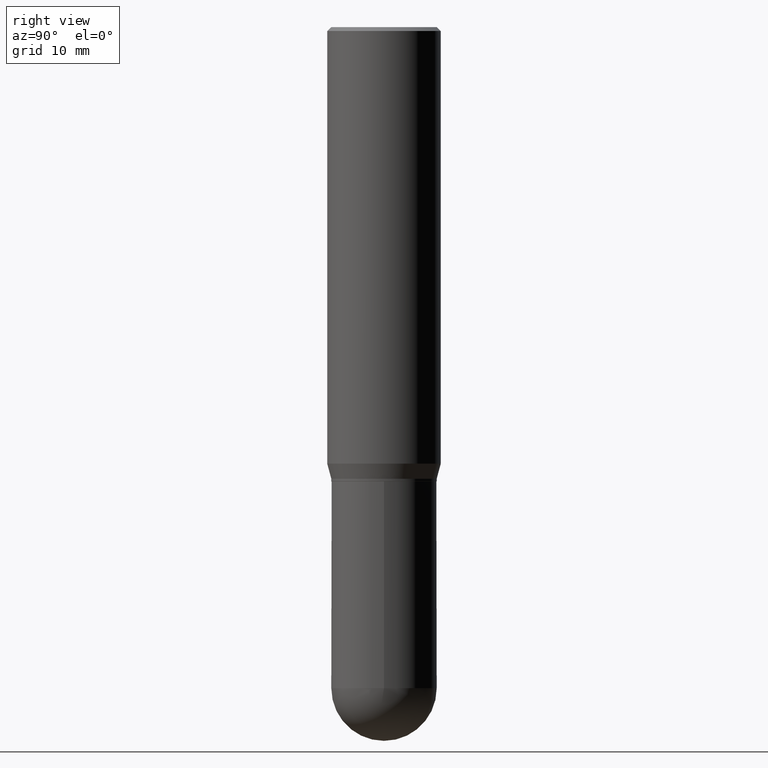
[diagram: clean part render]
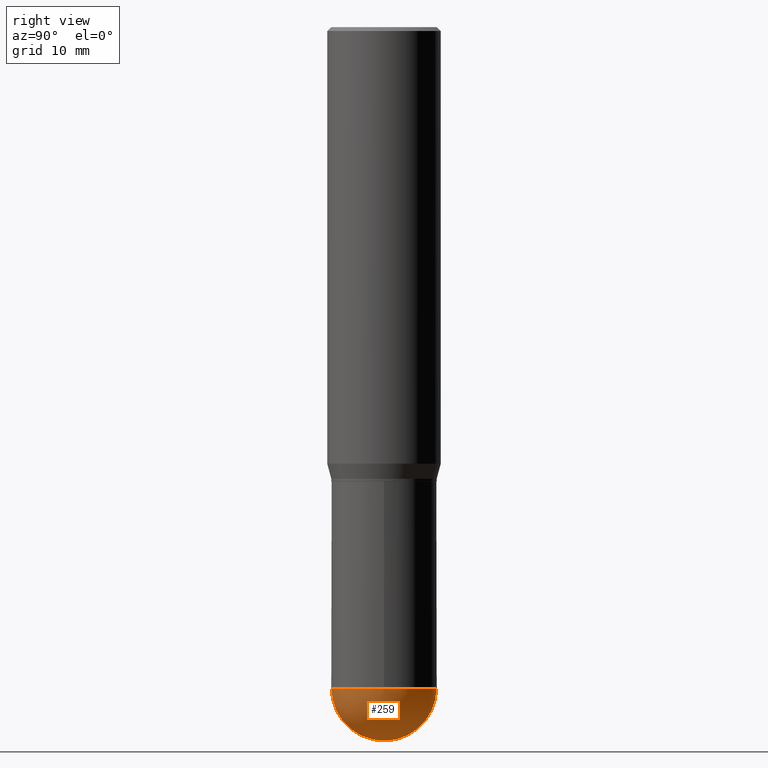
[diagram: same view with one face highlighted and labeled with its STEP entity id]
A machine part, right view. The second image highlights one B-rep face of the part: STEP entity #259.
In plain terms, the highlighted spherical surface has radius 5.1587 mm.
Its self-contained STEP definition (entity closure, byte-faithful):
#10 = CARTESIAN_POINT ( 'NONE',  ( 6.210996075139691695E-29, -8.917326398390289827E-15, -2.546899999999999942 ) ) ;
#18 = SPHERICAL_SURFACE ( 'NONE', #27, 0.2030999999999999472 ) ;
#27 = AXIS2_PLACEMENT_3D ( 'NONE', #490, #59, #142 ) ;
#36 = CARTESIAN_POINT ( 'NONE',  ( 6.228364502472924746E-29, -8.892453821899607499E-15, -2.546899999999999942 ) ) ;
#59 = DIRECTION ( 'NONE',  ( -1.000000000000000000, 6.982962677686266711E-15, -4.883557194083112901E-29 ) ) ;
#82 = VERTEX_POINT ( 'NONE', #307 ) ;
#84 = CIRCLE ( 'NONE', #373, 0.2030999999999999472 ) ;
#87 = CARTESIAN_POINT ( 'NONE',  ( 6.210996075139691695E-29, -8.917326398390289827E-15, -2.546899999999999942 ) ) ;
#92 = CARTESIAN_POINT ( 'NONE',  ( 1.418239719838142898E-15, 0.2030999999999910932, -2.546900000000000830 ) ) ;
#104 = FACE_OUTER_BOUND ( 'NONE', #501, .T. ) ;
#111 = ORIENTED_EDGE ( 'NONE', *, *, #132, .F. ) ;
#132 = EDGE_CURVE ( 'NONE', #199, #340, #84, .T. ) ;
#134 = DIRECTION ( 'NONE',  ( 1.000000000000000000, -6.982962677686262766E-15, 0.000000000000000000 ) ) ;
#142 = DIRECTION ( 'NONE',  ( 6.982962677686266711E-15, 1.000000000000000000, -2.690150658458162309E-15 ) ) ;
#151 = EDGE_CURVE ( 'NONE', #340, #82, #508, .T. ) ;
#162 = ORIENTED_EDGE ( 'NONE', *, *, #250, .T. ) ;
#165 = DIRECTION ( 'NONE',  ( -7.105427357601001070E-15, -1.000000000000000000, 0.000000000000000000 ) ) ;
#199 = VERTEX_POINT ( 'NONE', #319 ) ;
#226 = CARTESIAN_POINT ( 'NONE',  ( -1.443112296328700980E-15, -0.2031000000000088845, -2.546899999999999498 ) ) ;
#227 = DIRECTION ( 'NONE',  ( 1.000000000000000000, -6.982962677686262766E-15, 0.000000000000000000 ) ) ;
#250 = EDGE_CURVE ( 'NONE', #199, #279, #253, .T. ) ;
#253 = CIRCLE ( 'NONE', #484, 0.2030999999999999472 ) ;
#256 = DIRECTION ( 'NONE',  ( 6.982962677686266711E-15, 1.000000000000000000, 0.000000000000000000 ) ) ;
#259 = ADVANCED_FACE ( 'NONE', ( #104 ), #18, .T. ) ;
#270 = DIRECTION ( 'NONE',  ( -2.445468806185136597E-29, 3.491481338843145583E-15, 1.000000000000000000 ) ) ;
#277 = ORIENTED_EDGE ( 'NONE', *, *, #151, .F. ) ;
#279 = VERTEX_POINT ( 'NONE', #92 ) ;
#294 = DIRECTION ( 'NONE',  ( -2.445468806185136597E-29, 3.491481338843145583E-15, 1.000000000000000000 ) ) ;
#307 = CARTESIAN_POINT ( 'NONE',  ( 0.2031000000000000583, -8.919512802275635677E-15, -2.546899999999999942 ) ) ;
#319 = CARTESIAN_POINT ( 'NONE',  ( 6.716355003342508555E-29, -9.614009970063991023E-15, -2.750000000000000000 ) ) ;
#321 = DIRECTION ( 'NONE',  ( -1.000000000000000000, 7.105427357601001070E-15, -4.926315508542082329E-29 ) ) ;
#325 = CIRCLE ( 'NONE', #360, 0.2031000000000000583 ) ;
#340 = VERTEX_POINT ( 'NONE', #226 ) ;
#360 = AXIS2_PLACEMENT_3D ( 'NONE', #36, #270, #227 ) ;
#373 = AXIS2_PLACEMENT_3D ( 'NONE', #10, #321, #165 ) ;
#402 = DIRECTION ( 'NONE',  ( 1.000000000000000000, -6.982962677686265922E-15, 4.883557194083112340E-29 ) ) ;
#417 = ORIENTED_EDGE ( 'NONE', *, *, #449, .F. ) ;
#420 = AXIS2_PLACEMENT_3D ( 'NONE', #437, #294, #134 ) ;
#437 = CARTESIAN_POINT ( 'NONE',  ( 6.228364502472924746E-29, -8.892453821899607499E-15, -2.546899999999999942 ) ) ;
#449 = EDGE_CURVE ( 'NONE', #82, #279, #325, .T. ) ;
#484 = AXIS2_PLACEMENT_3D ( 'NONE', #87, #402, #256 ) ;
#490 = CARTESIAN_POINT ( 'NONE',  ( 6.210996075139691695E-29, -8.917326398390289827E-15, -2.546899999999999942 ) ) ;
#501 = EDGE_LOOP ( 'NONE', ( #111, #162, #417, #277 ) ) ;
#508 = CIRCLE ( 'NONE', #420, 0.2031000000000000583 ) ;